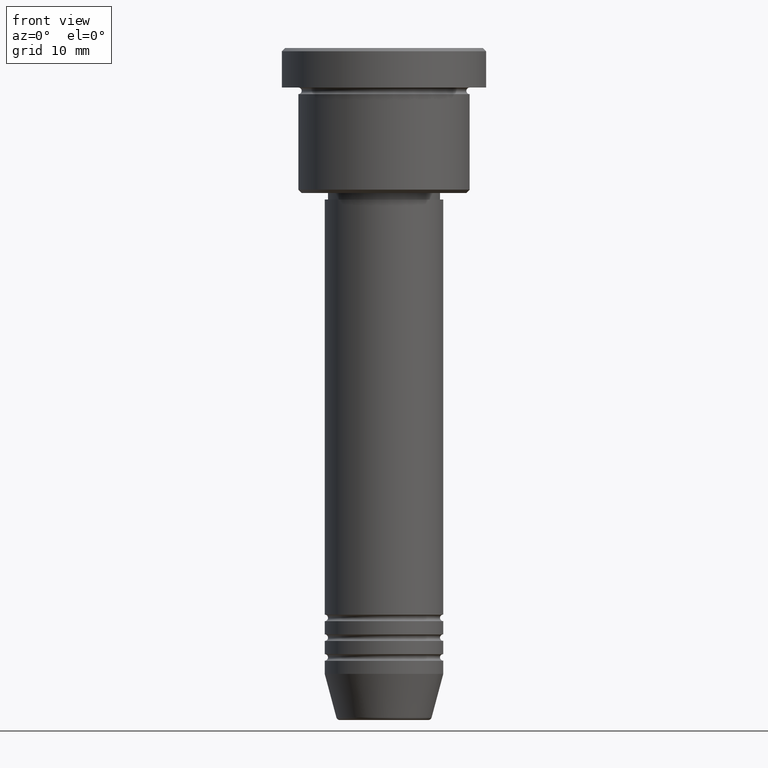
[diagram: clean part render]
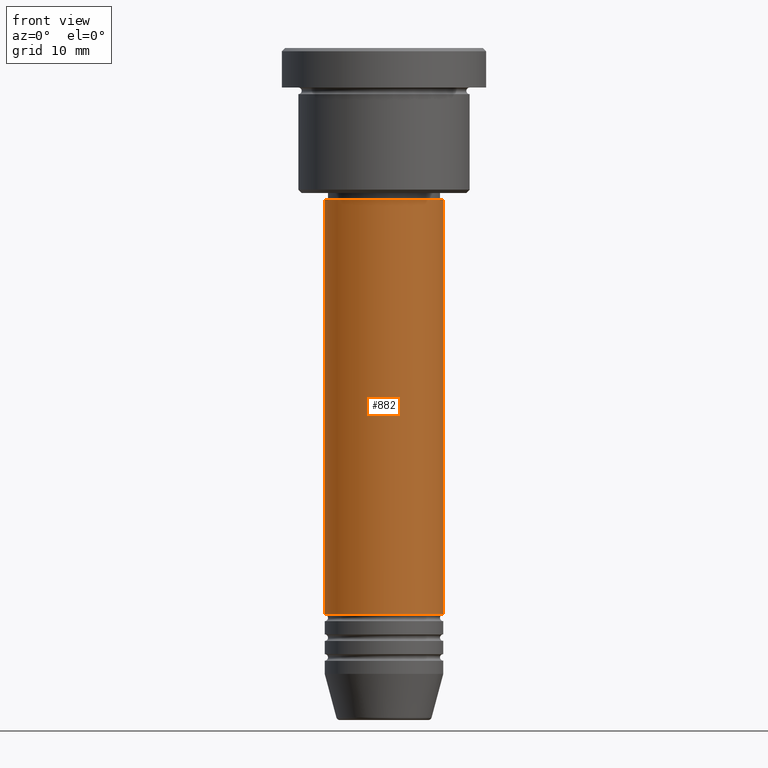
[diagram: same view with one face highlighted and labeled with its STEP entity id]
A machine part, front view. The second image highlights one B-rep face of the part: STEP entity #882.
In plain terms, the highlighted cylindrical surface (partial cylindrical patch) has radius 9 mm, axis along (-0, -0, 1).
Its self-contained STEP definition (entity closure, byte-faithful):
#11 = LINE ( 'NONE', #824, #888 ) ;
#26 = ORIENTED_EDGE ( 'NONE', *, *, #1114, .F. ) ;
#241 = CARTESIAN_POINT ( 'NONE',  ( -9.000000000000000000, 1.102182119232617714E-15, -22.99999999999997868 ) ) ;
#251 = FACE_OUTER_BOUND ( 'NONE', #719, .T. ) ;
#288 = CARTESIAN_POINT ( 'NONE',  ( 0.000000000000000000, 0.000000000000000000, -22.99999999999997868 ) ) ;
#317 = VERTEX_POINT ( 'NONE', #1133 ) ;
#331 = DIRECTION ( 'NONE',  ( 1.000000000000000000, 0.000000000000000000, 0.000000000000000000 ) ) ;
#352 = CYLINDRICAL_SURFACE ( 'NONE', #987, 9.000000000000000000 ) ;
#356 = AXIS2_PLACEMENT_3D ( 'NONE', #288, #1014, #1002 ) ;
#375 = DIRECTION ( 'NONE',  ( -0.000000000000000000, -0.000000000000000000, 1.000000000000000000 ) ) ;
#396 = VECTOR ( 'NONE', #896, 1000.000000000000000 ) ;
#451 = CARTESIAN_POINT ( 'NONE',  ( 9.000000000000000000, 0.000000000000000000, -22.99999999999997868 ) ) ;
#488 = CIRCLE ( 'NONE', #1164, 9.000000000000000000 ) ;
#499 = VERTEX_POINT ( 'NONE', #241 ) ;
#521 = CARTESIAN_POINT ( 'NONE',  ( 9.000000000000000000, 0.000000000000000000, 0.000000000000000000 ) ) ;
#561 = VERTEX_POINT ( 'NONE', #451 ) ;
#573 = ORIENTED_EDGE ( 'NONE', *, *, #648, .F. ) ;
#600 = DIRECTION ( 'NONE',  ( -0.000000000000000000, -0.000000000000000000, 1.000000000000000000 ) ) ;
#648 = EDGE_CURVE ( 'NONE', #499, #561, #1027, .T. ) ;
#719 = EDGE_LOOP ( 'NONE', ( #26, #1159, #901, #573 ) ) ;
#750 = VERTEX_POINT ( 'NONE', #1056 ) ;
#818 = CARTESIAN_POINT ( 'NONE',  ( 0.000000000000000000, 0.000000000000000000, -85.99999999999998579 ) ) ;
#824 = CARTESIAN_POINT ( 'NONE',  ( -9.000000000000000000, 1.102182119232617714E-15, 0.000000000000000000 ) ) ;
#879 = CARTESIAN_POINT ( 'NONE',  ( 0.000000000000000000, 0.000000000000000000, 0.000000000000000000 ) ) ;
#882 = ADVANCED_FACE ( 'NONE', ( #251 ), #352, .T. ) ;
#888 = VECTOR ( 'NONE', #375, 1000.000000000000000 ) ;
#896 = DIRECTION ( 'NONE',  ( -0.000000000000000000, -0.000000000000000000, 1.000000000000000000 ) ) ;
#901 = ORIENTED_EDGE ( 'NONE', *, *, #982, .T. ) ;
#907 = DIRECTION ( 'NONE',  ( 1.000000000000000000, 0.000000000000000000, 0.000000000000000000 ) ) ;
#982 = EDGE_CURVE ( 'NONE', #317, #561, #985, .T. ) ;
#985 = LINE ( 'NONE', #521, #396 ) ;
#987 = AXIS2_PLACEMENT_3D ( 'NONE', #879, #600, #331 ) ;
#1002 = DIRECTION ( 'NONE',  ( 1.000000000000000000, 0.000000000000000000, 0.000000000000000000 ) ) ;
#1014 = DIRECTION ( 'NONE',  ( -0.000000000000000000, -0.000000000000000000, 1.000000000000000000 ) ) ;
#1027 = CIRCLE ( 'NONE', #356, 9.000000000000000000 ) ;
#1048 = EDGE_CURVE ( 'NONE', #750, #317, #488, .T. ) ;
#1056 = CARTESIAN_POINT ( 'NONE',  ( -9.000000000000000000, 1.102182119232617714E-15, -85.99999999999998579 ) ) ;
#1109 = DIRECTION ( 'NONE',  ( -0.000000000000000000, -0.000000000000000000, 1.000000000000000000 ) ) ;
#1114 = EDGE_CURVE ( 'NONE', #750, #499, #11, .T. ) ;
#1133 = CARTESIAN_POINT ( 'NONE',  ( 9.000000000000000000, 0.000000000000000000, -85.99999999999998579 ) ) ;
#1159 = ORIENTED_EDGE ( 'NONE', *, *, #1048, .T. ) ;
#1164 = AXIS2_PLACEMENT_3D ( 'NONE', #818, #1109, #907 ) ;